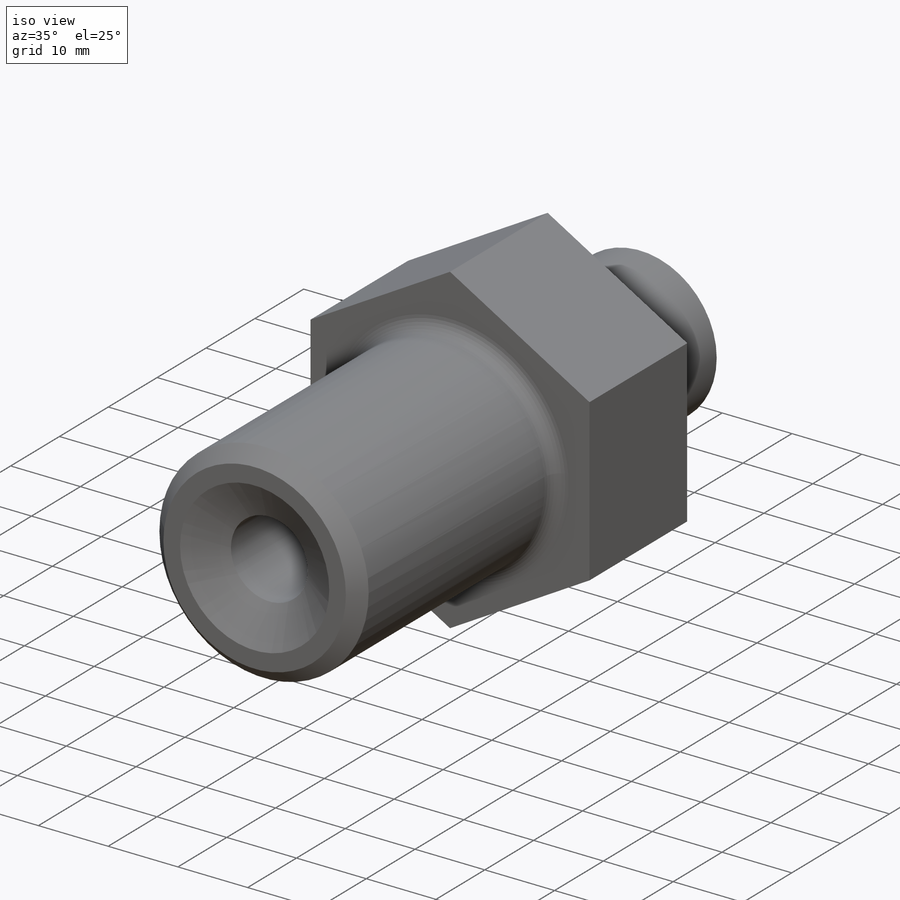
[diagram: iso view]
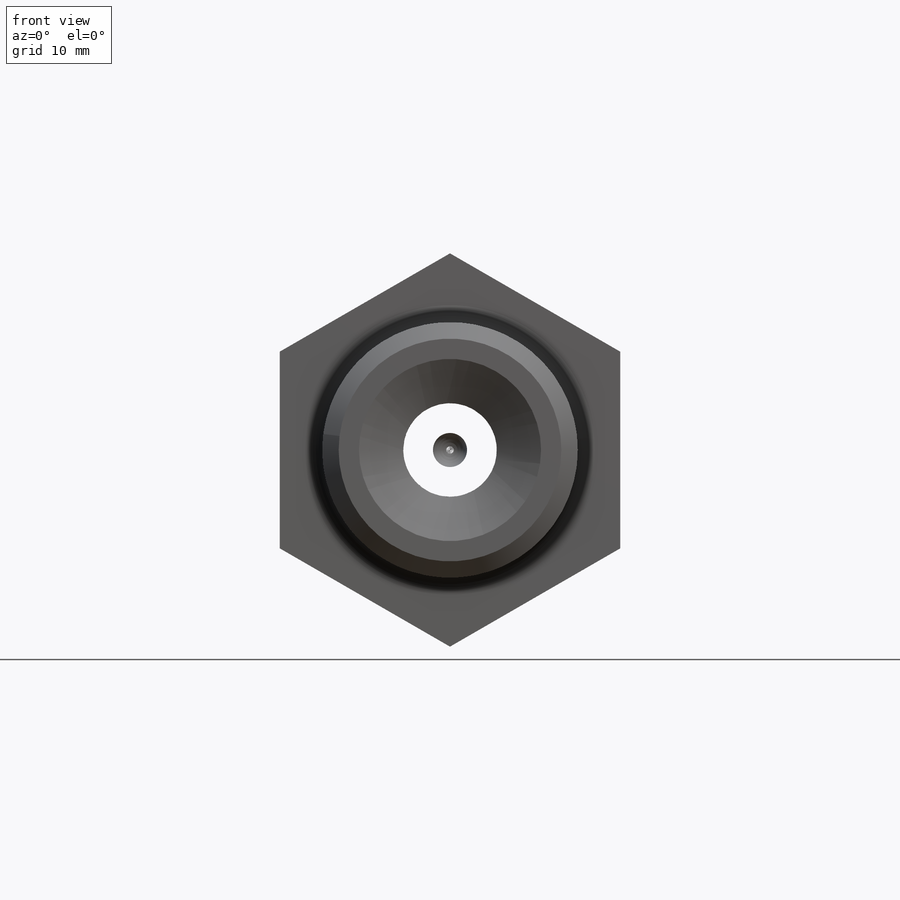
[diagram: front view]
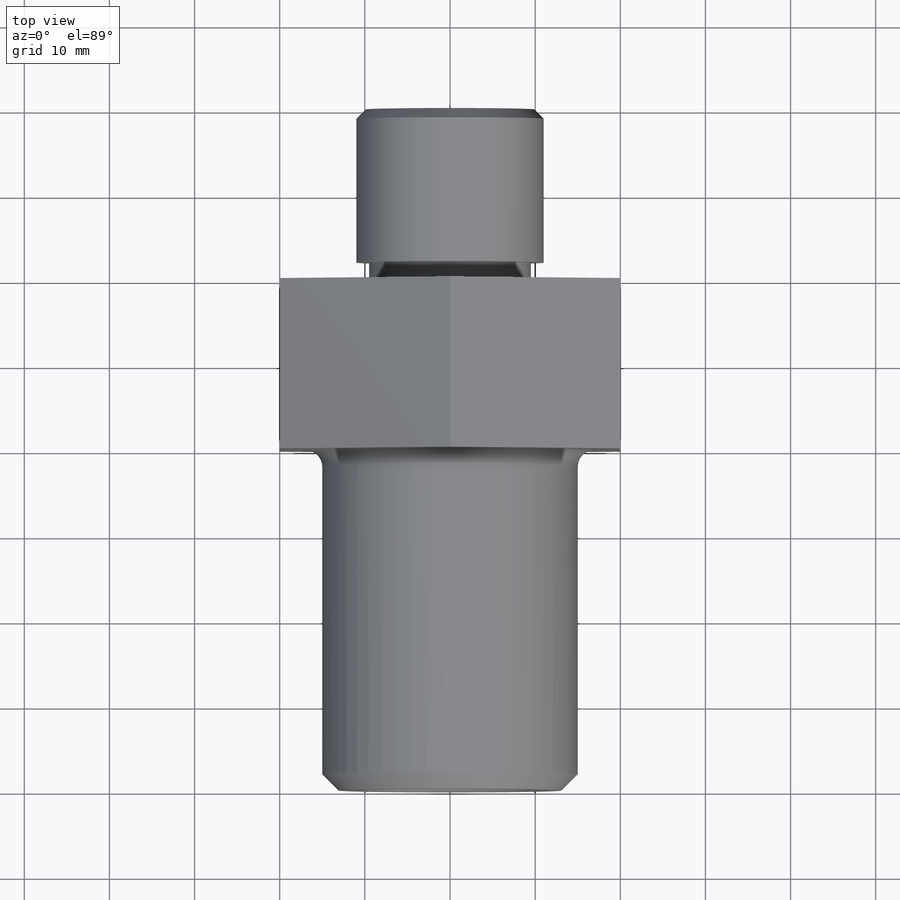
[diagram: top view]
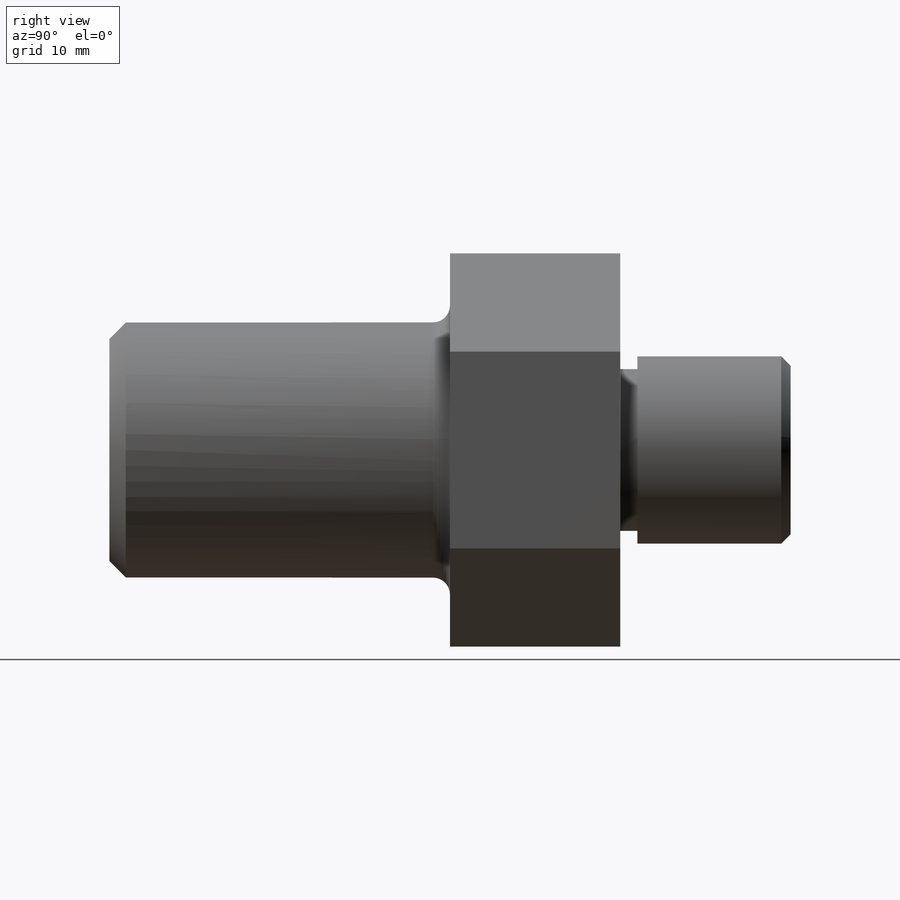
[diagram: right view]
SOLIDWORKS PART (.sldprt)
format: sldprt  version: not decoded by parser v0  size: 350,720 bytes
history: native  units: mm
features: sketch x6, extrude x4, plane x3, chamfer x3, thread x2, material x1, cut_revolve x1, cut_extrude x1, fillet x1 (+9 scaffold rows collapsed)
feature tree (31):
  scaffold x9  (default folders/planes/origin — collapsed)
  material  "Сталь"
  plane  "Спереди"
  plane  "Сверху"
  plane  "Справа"
  sketch  "Эскиз1"  dims[D1=35.0mm]
  extrude  "Бобышка-Вытянуть1"  Depth=20mm
  sketch  "Эскиз2"  dims[D1=30.0mm]
  extrude  "Бобышка-Вытянуть2"  [1 undecoded]
  thread  "Условное изображение резьбы2"  Diameter=25mm  [1 undecoded]
  sketch  "Эскиз3"  dims[D1=22.0mm]
  extrude  "Бобышка-Вытянуть3"  [1 undecoded]
  thread  "Условное изображение резьбы1"  Diameter=19.797mm  [1 undecoded]
  sketch  "Эскиз4"  dims[c1.D1=11.0mm c1.D2=3.0mm c1.D3=3.0mm c2.D3=60.0deg]
  cut_revolve  "Вырез-Повернуть1"  Angle=360deg
  chamfer  "Фаска1"  Distance=1.1015mm Angle=45deg
  sketch  "Эскиз5"  dims[D1=19.0mm]
  cut_extrude  "Вырез-Вытянуть1"  Depth=2mm
  chamfer  "Фаска2"  Distance=1.921mm Angle=45deg
  fillet  "Скругление1"  Radius=2mm
  chamfer  "Фаска3"  Distance=2mm Angle=30deg
  sketch  "Эскиз6"  dims[D2=40.0mm D1=0.0mm]
  extrude  "Бобышка-Вытянуть4"  [1 undecoded]
decode coverage: 15 of 18 modeling features carry decoded parameters
note: 5 parameter values undecoded
summary: no parameter record found for 3 features
note: suppression state not decoded; provenance and decode notes live in map.json
